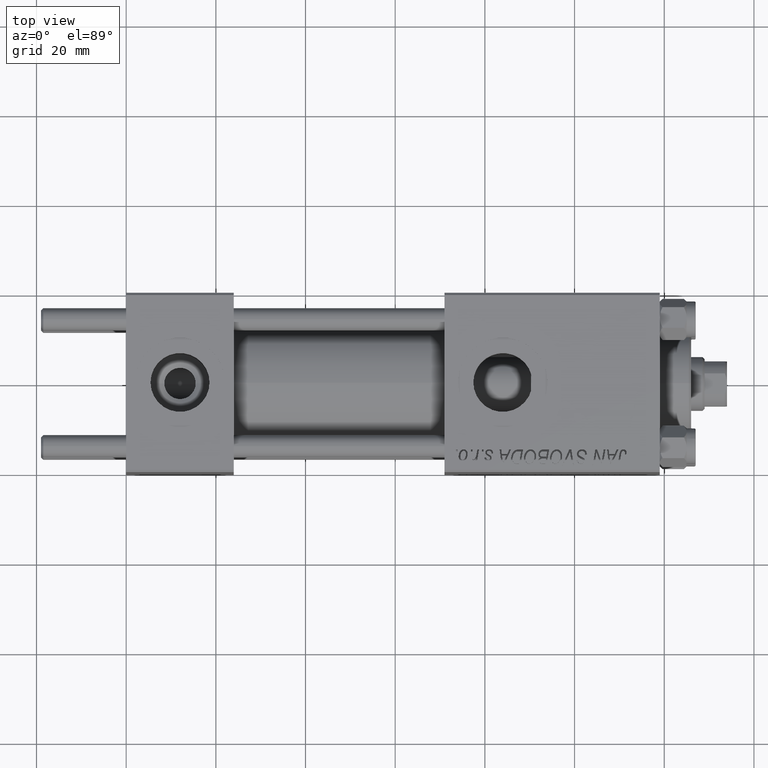
[diagram: clean part render]
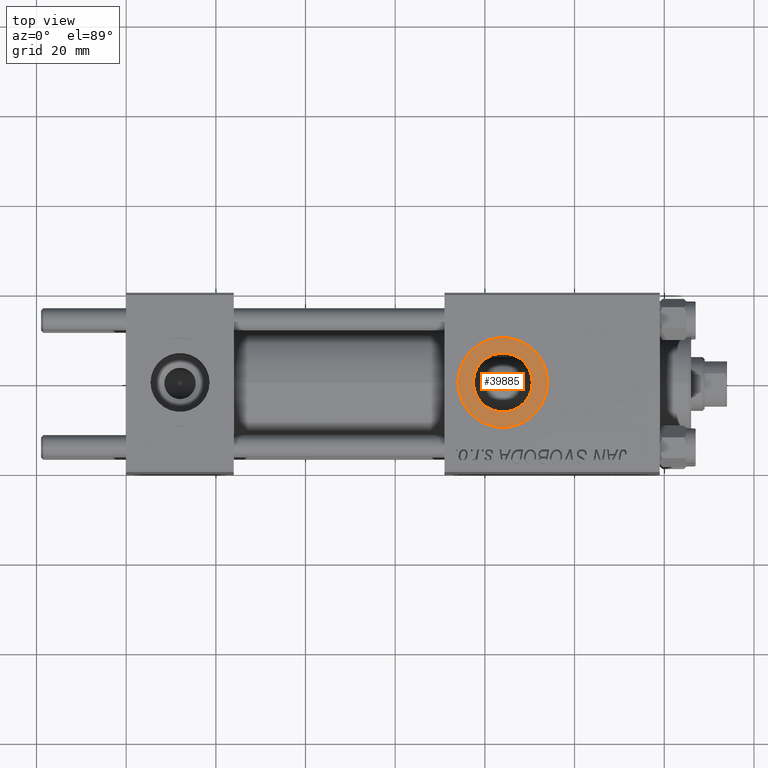
[diagram: same view with one face highlighted and labeled with its STEP entity id]
A machine part, top view. The second image highlights one B-rep face of the part: STEP entity #39885.
In plain terms, the highlighted planar face has unit normal (0, 0, 1).
Its self-contained STEP definition (entity closure, byte-faithful):
#1188 = EDGE_CURVE ( 'NONE', #17115, #4125, #31932, .T. ) ;
#2103 = DIRECTION ( 'NONE',  ( 1.000000000000000000, 0.000000000000000000, 0.000000000000000000 ) ) ;
#2668 = DIRECTION ( 'NONE',  ( 0.000000000000000000, 0.000000000000000000, 1.000000000000000000 ) ) ;
#2743 = EDGE_LOOP ( 'NONE', ( #38336, #10373 ) ) ;
#2812 = DIRECTION ( 'NONE',  ( -0.000000000000000000, -0.000000000000000000, -1.000000000000000000 ) ) ;
#4125 = VERTEX_POINT ( 'NONE', #12768 ) ;
#7757 = DIRECTION ( 'NONE',  ( 0.000000000000000000, 0.000000000000000000, 1.000000000000000000 ) ) ;
#8009 = PLANE ( 'NONE',  #15559 ) ;
#9360 = VERTEX_POINT ( 'NONE', #39178 ) ;
#10373 = ORIENTED_EDGE ( 'NONE', *, *, #1188, .T. ) ;
#11804 = CARTESIAN_POINT ( 'NONE',  ( 84.00000000000000000, -1.734723475976806897E-15, 19.80000000000000071 ) ) ;
#12768 = CARTESIAN_POINT ( 'NONE',  ( 94.00000000000154898, -1.734723475976806897E-15, 19.80000000000000071 ) ) ;
#14906 = EDGE_CURVE ( 'NONE', #40638, #9360, #15299, .T. ) ;
#15299 = CIRCLE ( 'NONE', #40300, 6.580000000001542837 ) ;
#15559 = AXIS2_PLACEMENT_3D ( 'NONE', #11804, #7757, #42354 ) ;
#16956 = EDGE_CURVE ( 'NONE', #4125, #17115, #48443, .T. ) ;
#17015 = DIRECTION ( 'NONE',  ( -0.000000000000000000, -0.000000000000000000, -1.000000000000000000 ) ) ;
#17115 = VERTEX_POINT ( 'NONE', #48657 ) ;
#17635 = FACE_BOUND ( 'NONE', #38463, .T. ) ;
#21593 = ORIENTED_EDGE ( 'NONE', *, *, #24102, .T. ) ;
#24102 = EDGE_CURVE ( 'NONE', #9360, #40638, #46612, .T. ) ;
#24183 = ORIENTED_EDGE ( 'NONE', *, *, #14906, .T. ) ;
#27018 = CARTESIAN_POINT ( 'NONE',  ( 84.00000000000000000, -1.734723475976806897E-15, 19.80000000000000071 ) ) ;
#31932 = CIRCLE ( 'NONE', #48059, 10.00000000000154898 ) ;
#33063 = FACE_OUTER_BOUND ( 'NONE', #2743, .T. ) ;
#35294 = CARTESIAN_POINT ( 'NONE',  ( 84.00000000000000000, -1.734723475976806897E-15, 19.80000000000000071 ) ) ;
#35565 = AXIS2_PLACEMENT_3D ( 'NONE', #27018, #46461, #38138 ) ;
#36790 = DIRECTION ( 'NONE',  ( 1.000000000000000000, 0.000000000000000000, 0.000000000000000000 ) ) ;
#36908 = CARTESIAN_POINT ( 'NONE',  ( 77.41999999999846693, -1.734723475976806897E-15, 19.80000000000000071 ) ) ;
#37033 = CARTESIAN_POINT ( 'NONE',  ( 84.00000000000000000, -1.734723475976806897E-15, 19.80000000000000071 ) ) ;
#38138 = DIRECTION ( 'NONE',  ( 1.000000000000000000, 0.000000000000000000, 0.000000000000000000 ) ) ;
#38336 = ORIENTED_EDGE ( 'NONE', *, *, #16956, .T. ) ;
#38463 = EDGE_LOOP ( 'NONE', ( #24183, #21593 ) ) ;
#39178 = CARTESIAN_POINT ( 'NONE',  ( 90.58000000000154728, -9.289058821376599092E-16, 19.80000000000000071 ) ) ;
#39885 = ADVANCED_FACE ( 'NONE', ( #17635, #33063 ), #8009, .T. ) ;
#40300 = AXIS2_PLACEMENT_3D ( 'NONE', #44761, #2812, #40718 ) ;
#40638 = VERTEX_POINT ( 'NONE', #36908 ) ;
#40718 = DIRECTION ( 'NONE',  ( 1.000000000000000000, 0.000000000000000000, 0.000000000000000000 ) ) ;
#42354 = DIRECTION ( 'NONE',  ( 1.000000000000000000, 0.000000000000000000, -0.000000000000000000 ) ) ;
#43408 = AXIS2_PLACEMENT_3D ( 'NONE', #35294, #17015, #2103 ) ;
#44761 = CARTESIAN_POINT ( 'NONE',  ( 84.00000000000000000, -1.734723475976806897E-15, 19.80000000000000071 ) ) ;
#46461 = DIRECTION ( 'NONE',  ( 0.000000000000000000, 0.000000000000000000, 1.000000000000000000 ) ) ;
#46612 = CIRCLE ( 'NONE', #43408, 6.580000000001542837 ) ;
#48059 = AXIS2_PLACEMENT_3D ( 'NONE', #37033, #2668, #36790 ) ;
#48443 = CIRCLE ( 'NONE', #35565, 10.00000000000154898 ) ;
#48657 = CARTESIAN_POINT ( 'NONE',  ( 73.99999999999845102, -5.100766768292640183E-16, 19.80000000000000071 ) ) ;